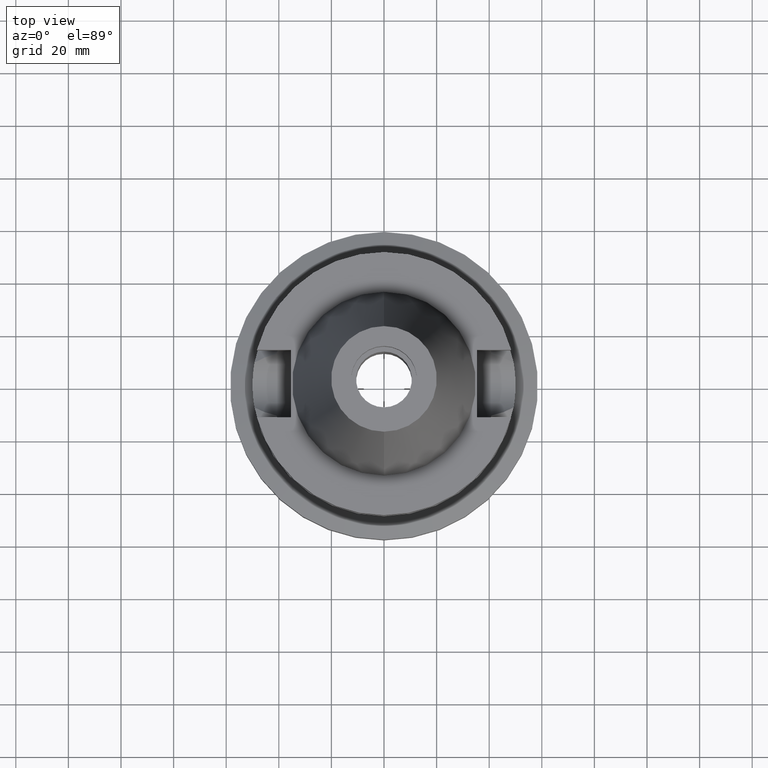
[diagram: clean part render]
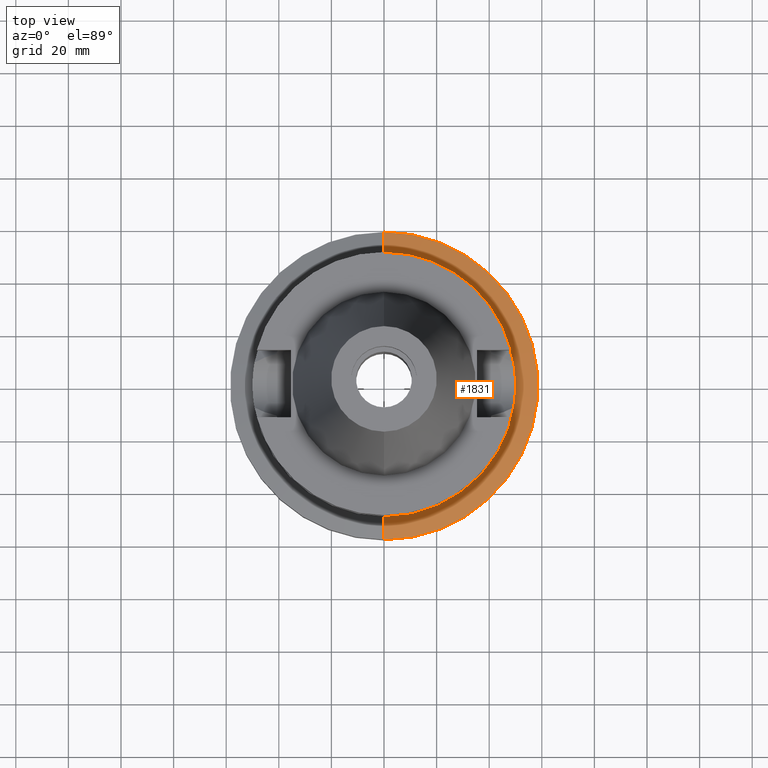
[diagram: same view with one face highlighted and labeled with its STEP entity id]
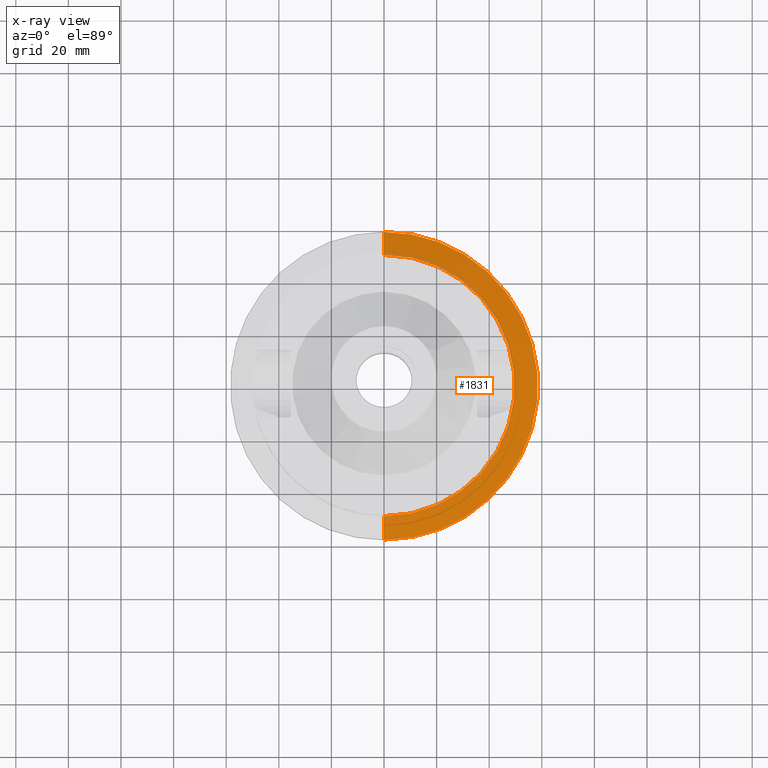
[diagram: x-ray of the same camera — body ghosted, the highlighted face saturated]
A machine part, top view. The second image highlights one B-rep face of the part: STEP entity #1831.
The next image is the same camera in x-ray: the body ghosted, the highlighted face saturated — about 4% of this face is hidden behind the body in this view.
In plain terms, the highlighted conical surface has half-angle 75 deg.
Its self-contained STEP definition (entity closure, byte-faithful):
#482=DIRECTION('',(0.E0,-9.659258262891E-1,-2.588190451023E-1));
#483=VECTOR('',#482,9.110430387608E0);
#484=CARTESIAN_POINT('',(0.E0,-4.97E1,-4.8E1));
#485=LINE('',#484,#483);
#497=DIRECTION('',(0.E0,9.659258262891E-1,-2.588190451023E-1));
#498=VECTOR('',#497,9.110430387608E0);
#499=CARTESIAN_POINT('',(0.E0,4.97E1,-4.8E1));
#500=LINE('',#499,#498);
#504=CARTESIAN_POINT('',(0.E0,0.E0,-5.035795289340E1));
#505=DIRECTION('',(0.E0,0.E0,-1.E0));
#506=DIRECTION('',(0.E0,1.E0,0.E0));
#507=AXIS2_PLACEMENT_3D('',#504,#505,#506);
#512=CARTESIAN_POINT('',(0.E0,0.E0,-4.8E1));
#513=DIRECTION('',(0.E0,0.E0,1.E0));
#514=DIRECTION('',(0.E0,-1.E0,0.E0));
#515=AXIS2_PLACEMENT_3D('',#512,#513,#514);
#1250=CARTESIAN_POINT('',(0.E0,5.85E1,-5.035795289339E1));
#1251=VERTEX_POINT('',#1250);
#1252=CARTESIAN_POINT('',(0.E0,-5.85E1,-5.035795289339E1));
#1253=VERTEX_POINT('',#1252);
#1254=CARTESIAN_POINT('',(0.E0,4.97E1,-4.8E1));
#1255=VERTEX_POINT('',#1254);
#1256=CARTESIAN_POINT('',(0.E0,-4.97E1,-4.8E1));
#1257=VERTEX_POINT('',#1256);
#1819=CARTESIAN_POINT('',(0.E0,0.E0,-4.917897644670E1));
#1820=DIRECTION('',(0.E0,0.E0,-1.E0));
#1821=DIRECTION('',(0.E0,-1.E0,0.E0));
#1822=AXIS2_PLACEMENT_3D('',#1819,#1820,#1821);
#1823=CONICAL_SURFACE('',#1822,5.41E1,7.5E1);
#1824=ORIENTED_EDGE('',*,*,#1809,.T.);
#1825=ORIENTED_EDGE('',*,*,#1786,.T.);
#1826=ORIENTED_EDGE('',*,*,#1813,.F.);
#1828=ORIENTED_EDGE('',*,*,#1827,.T.);
#1829=EDGE_LOOP('',(#1824,#1825,#1826,#1828));
#1830=FACE_OUTER_BOUND('',#1829,.F.);
#508=CIRCLE('',#507,5.85E1);
#516=CIRCLE('',#515,4.97E1);
#1786=EDGE_CURVE('',#1251,#1253,#508,.T.);
#1809=EDGE_CURVE('',#1255,#1251,#500,.T.);
#1813=EDGE_CURVE('',#1257,#1253,#485,.T.);
#1827=EDGE_CURVE('',#1257,#1255,#516,.T.);
#1831=ADVANCED_FACE('',(#1830),#1823,.T.);